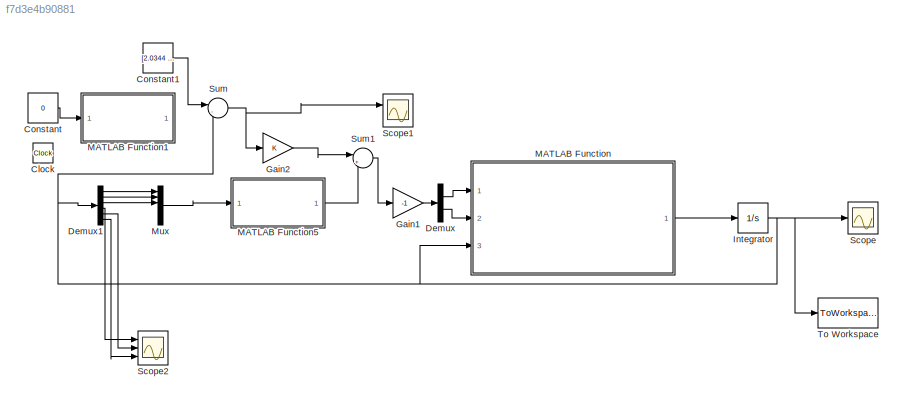
MODEL slx_f7d3e4b90881
KIND model
CONFIG AbsTol = auto
CONFIG EnableMultiTasking = off
CONFIG FixedStep = auto
CONFIG MaxStep = auto
CONFIG MinStep = auto
CONFIG RelTol = 1e-3
CONFIG SampleTimeConstraint = Unconstrained
CONFIG Solver = VariableStepAuto
CONFIG SolverName = VariableStepAuto
CONFIG StartTime = 0.0
CONFIG StopTime = 10
BLOCK [Clock] Clock
BLOCK [Constant] Constant
  Value = 0
BLOCK [Constant] Constant1
  Value = [2.0344   -1.5708    1.5708    0.0000   -0.0000    0.0000\n]
BLOCK [Demux] Demux
  DisplayOption = bar
  Outputs = 2
  Ports = [1, 2]
BLOCK [Demux] Demux1
  DisplayOption = bar
  Outputs = 6
  Ports = [1, 6]
BLOCK [Gain] Gain1
  Gain = -1
  OutDataTypeStr = Inherit: Inherit via internal rule
  ParamDataTypeStr = Inherit: Inherit via internal rule
  SaturateOnIntegerOverflow = off
BLOCK [Gain] Gain2
  Gain = K
  Multiplication = Matrix(K*u)
  OutDataTypeStr = Inherit: Inherit via internal rule
  ParamDataTypeStr = Inherit: Inherit via internal rule
  SaturateOnIntegerOverflow = off
BLOCK [Integrator] Integrator
  InitialCondition = [ 2.0344   -1.5708    1.5708    0.0000   -0.0000    0.0000\n]
  Ports = [1, 1]
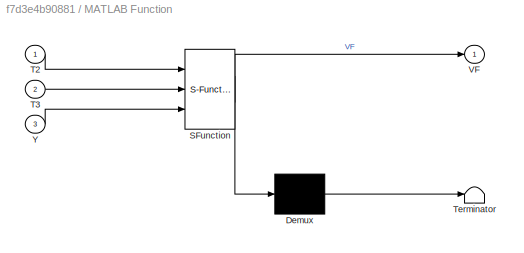
BLOCK [SubSystem] MATLAB Function
  ErrorFcn = Stateflow.Translate.translate
  PermitHierarchicalResolution = ExplicitOnly
  Ports = [3, 1]
  RequestExecContextInheritance = off
  SFBlockType = MATLAB Function
  TreatAsAtomicUnit = on
  Variant = off
BLOCK [Demux] MATLAB Function/ Demux 
  Outputs = 1
  Ports = [1, 1]
BLOCK [S-Function] MATLAB Function/ SFunction 
  EnableBusSupport = on
  FunctionName = sf_sfun
  PortCounts = [3 2]
  Ports = [3, 2]
  SFcnIsStateOwnerBlock = off
  SFunctionDeploymentMode = off
  Tag = Stateflow S-Function ground_state 1
BLOCK [Terminator] MATLAB Function/ Terminator 
BLOCK [Inport] MATLAB Function/T2
  IconDisplay = Port number
BLOCK [Inport] MATLAB Function/T3
  IconDisplay = Port number
  Port = 2
BLOCK [Outport] MATLAB Function/VF
  IconDisplay = Port number
BLOCK [Inport] MATLAB Function/Y
  IconDisplay = Port number
  Port = 3
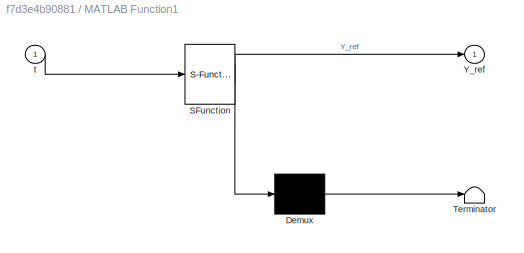
BLOCK [SubSystem] MATLAB Function1
  ErrorFcn = Stateflow.Translate.translate
  PermitHierarchicalResolution = ExplicitOnly
  Ports = [1, 1]
  RequestExecContextInheritance = off
  SFBlockType = MATLAB Function
  TreatAsAtomicUnit = on
  Variant = off
BLOCK [Demux] MATLAB Function1/ Demux 
  Outputs = 1
  Ports = [1, 1]
BLOCK [S-Function] MATLAB Function1/ SFunction 
  EnableBusSupport = on
  FunctionName = sf_sfun
  PortCounts = [1 2]
  Ports = [1, 2]
  SFcnIsStateOwnerBlock = off
  SFunctionDeploymentMode = off
  Tag = Stateflow S-Function ground_state 2
BLOCK [Terminator] MATLAB Function1/ Terminator 
BLOCK [Outport] MATLAB Function1/Y_ref
  IconDisplay = Port number
BLOCK [Inport] MATLAB Function1/t
  IconDisplay = Port number
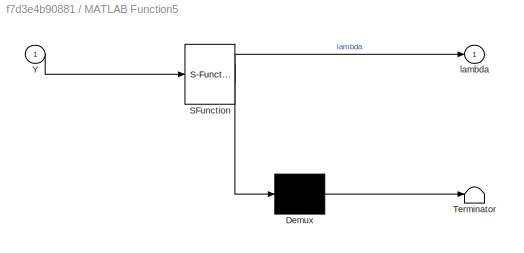
BLOCK [SubSystem] MATLAB Function5
  ErrorFcn = Stateflow.Translate.translate
  PermitHierarchicalResolution = ExplicitOnly
  Ports = [1, 1]
  RequestExecContextInheritance = off
  SFBlockType = MATLAB Function
  TreatAsAtomicUnit = on
  Variant = off
BLOCK [Demux] MATLAB Function5/ Demux 
  Outputs = 1
  Ports = [1, 1]
BLOCK [S-Function] MATLAB Function5/ SFunction 
  EnableBusSupport = on
  FunctionName = sf_sfun
  PortCounts = [1 2]
  Ports = [1, 2]
  SFcnIsStateOwnerBlock = off
  SFunctionDeploymentMode = off
  Tag = Stateflow S-Function ground_state 5
BLOCK [Terminator] MATLAB Function5/ Terminator 
BLOCK [Inport] MATLAB Function5/Y
  IconDisplay = Port number
BLOCK [Outport] MATLAB Function5/lambda
  IconDisplay = Port number
BLOCK [Mux] Mux
  DisplayOption = bar
  Inputs = 6
  Ports = [6, 1]
BLOCK [Scope] Scope
  NumInputPorts = 1
  Ports = [1]
  ScopeSpecificationString = Simulink.scopes.TimeScopeBlockCfg('CurrentConfiguration', extmgr.ConfigurationSet(extmgr.Configuration('Core','General UI',true),extmgr.Configuration('Core','Source UI',true),extmgr.Configuration('Sources','WiredSimulink',true),extmgr.Configuration('Visuals','Time Domain',true,'SerializedDisplays',{struct('MinYLimReal','-113.33031','MaxYLimReal','69.14552','YLabelReal','','MinYLimMag',' 0.00000','...<+1478ch>
BLOCK [Scope] Scope1
  NumInputPorts = 2
  Ports = [2]
  ScopeSpecificationString = Simulink.scopes.TimeScopeBlockCfg('CurrentConfiguration', extmgr.ConfigurationSet(extmgr.Configuration('Core','General UI',true),extmgr.Configuration('Core','Source UI',true),extmgr.Configuration('Sources','WiredSimulink',true,'DataLoggingVariableName','ScopeData1'),extmgr.Configuration('Visuals','Time Domain',true,'SerializedDisplays',{struct('MinYLimReal','-32.02962','MaxYLimReal','25.6883','YLa...<+1469ch>
BLOCK [Scope] Scope2
  NumInputPorts = 3
  Ports = [3]
  ScopeSpecificationString = Simulink.scopes.TimeScopeBlockCfg('CurrentConfiguration', extmgr.ConfigurationSet(extmgr.Configuration('Core','General UI',true),extmgr.Configuration('Core','Source UI',true),extmgr.Configuration('Sources','WiredSimulink',true,'DataLoggingVariableName','ScopeData1'),extmgr.Configuration('Visuals','Time Domain',true,'SerializedDisplays',{struct('MinYLimReal','-32.02962','MaxYLimReal','25.6883','YLa...<+1442ch>
BLOCK [Sum] Sum
  IconShape = round
  InputSameDT = off
  Inputs = |-+
  OutDataTypeStr = Inherit: Inherit via internal rule
  Ports = [2, 1]
  SaturateOnIntegerOverflow = off
BLOCK [Sum] Sum1
  IconShape = round
  InputSameDT = off
  Inputs = |++
  OutDataTypeStr = Inherit: Inherit via internal rule
  Ports = [2, 1]
  SaturateOnIntegerOverflow = off
BLOCK [ToWorkspace] To Workspace
  FixptAsFi = on
  MaxDataPoints = inf
  Ports = [1]
  SampleTime = -1
  Save2DSignal = 3-D array (concatenate along third dimension)
  SaveFormat = Timeseries
  VariableName = simout
LINE Constant1:1 -> Sum:1
LINE Constant:1 -> MATLAB Function1:1
LINE Demux1:1 -> Mux:1
LINE Demux1:2 -> Mux:2
LINE Demux1:3 -> Mux:3
LINE Demux1:4 -> Scope2:1
LINE Demux1:5 -> Scope2:2
LINE Demux1:6 -> Scope2:3
LINE Demux:1 -> MATLAB Function:1
LINE Demux:2 -> MATLAB Function:2
LINE Gain1:1 -> Demux:1
LINE Gain2:1 -> Sum1:1
NET Integrator:1 -> Demux1:1, MATLAB Function:3, Scope:1, Sum:2, To Workspace:1
LINE MATLAB Function5:1 -> Sum1:2
LINE MATLAB Function:1 -> Integrator:1
LINE Mux:1 -> MATLAB Function5:1
LINE Sum1:1 -> Gain1:1
NET Sum:1 -> Gain2:1, Scope1:1
note: NET lines group one-source signal fan-out (src -> all destinations, sorted); 1:1 wires keep LINE
CHART MATLAB Function states=1 transitions=1
  STATE_LABEL 'eML_blk_kernel()'
  STATE_LABEL 'SCRIPT:\nfunction VF = threedof_ground(T2,T3,Y)\n%THREEDOF_GROUND\n%    VF = THREEDOF_GROUND(T2,T3,Y)\n\n%    This function was generated by the Symbolic Math Toolbox version 8.0.\n%    23-Nov-2018 17:29:58\n\nt2 = Y(2);\nt3 = t2.*2.0;\nt4 = Y(3);\nt5 = t4.*2.0;\nt6 = Y(1);\nt7 = Y(4);\nt8 = t7.^2;\nt9 = t2-t4;\nt10 = sin(t9);\nt11 = Y(5);\nt12 = Y(6);\nt13 = t2+t5;\nt14 = sin(t13);\nt15 = t11.^2;\nt16 = cos(t5);\nt17 =...<+3047ch>'
CHART MATLAB Function1 states=1 transitions=1
  STATE_LABEL 'eML_blk_kernel()'
  STATE_LABEL 'SCRIPT:\nfunction Y_ref = Refrence(t)\n%REFRENCE\n%    Y_REF = REFRENCE(T)\n\n%    This function was generated by the Symbolic Math Toolbox version 8.0.\n%    25-Nov-2018 00:13:09\n\nt2 = t.^2;\nt3 = exp(t2);\nt4 = 1.0./sqrt(t3);\nt5 = t.*5.0;\nt6 = exp(t5);\nt7 = exp(-2.5e1./2.0);\nt8 = t4.*t6.*t7.*(2.0./5.0);\nt9 = cos(t8);\nt10 = sin(t8);\nt11 = t-5.0;\nt12 = t11.^2;\nt26 = t12.*(1.0./2.0);\nt13 = exp(-t26);\nt14 =...<+439ch>'
CHART MATLAB Function5 states=1 transitions=1
  STATE_LABEL 'eML_blk_kernel()'
  STATE_LABEL 'SCRIPT:\nfunction lambda = ridgid_torque(Y)\n%RIDGID_TORQUE\n%    LAMBDA = RIDGID_TORQUE(Y)\n\n%    This function was generated by the Symbolic Math Toolbox version 8.0.\n%    24-Nov-2018 22:24:49\n\nt2 = Y(2);\nt3 = Y(3);\nt4 = Y(1);\nt5 = t2.*2.0;\nt6 = Y(4);\nt7 = sin(t5);\nt8 = Y(5);\nt9 = t6.^2;\nt10 = t2-t3;\nt11 = sin(t10);\nt12 = t8.^2;\nt13 = t3.*2.0;\nt14 = Y(6);\nt15 = t3+t5;\nt16 = sin(t15);\nt17 = t2+t13;\nt...<+2252ch>'
